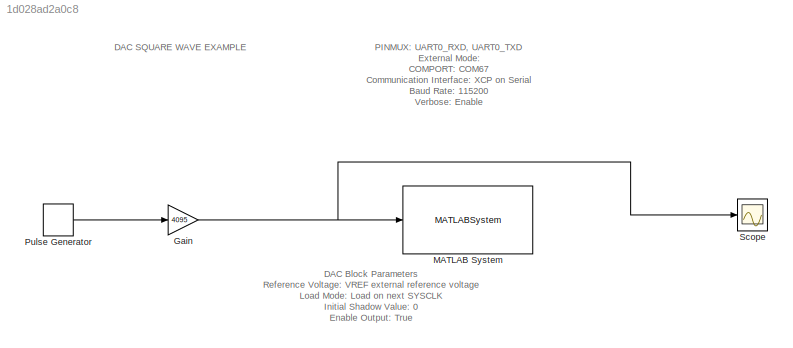
MODEL slx_1d028ad2a0c8
KIND model
CONFIG AbsTol = auto
CONFIG EnableMultiTasking = off
CONFIG FixedStep = auto
CONFIG MaxStep = auto
CONFIG MinStep = auto
CONFIG RelTol = 1e-3
CONFIG SampleTimeConstraint = Unconstrained
CONFIG SolverName = FixedStepAuto
CONFIG StartTime = 0.0
CONFIG StopTime = inf
BLOCK [Gain] Gain
  Gain = 4095
BLOCK [MATLABSystem] MATLAB System
  Control_Register = off
  EPWMSYNCPER_Signal = EPWM0SYNCPER
  Enable_Output = on
  Load_Mode = Load on next SYSCLK
  MaskDisplay = disp(['DAC' char(10) 'Type 1P2']);\nport_label('input',1,'DIN');
  MaskType = DAC
  Output_Register = off
  Reference_Voltage = VREF reference voltage (External)
  Shadow_Register = off
  Shadow_Value = 0
  System = DAC
BLOCK [DiscretePulseGenerator] Pulse Generator
  Period = 10
  PulseType = Time based
  PulseWidth = 60
BLOCK [Scope] Scope
  Floating = off
  NumInputPorts = 1
  ScopeSpecificationString = Simulink.scopes.TimeScopeBlockCfg('CurrentConfiguration', extmgr.ConfigurationSet(extmgr.Configuration('Core','General UI',true),extmgr.Configuration('Core','Source UI',true),extmgr.Configuration('Sources','WiredSimulink',true),extmgr.Configuration('Visuals','Time Domain',true,'SerializedDisplays',{struct('MinYLimReal','-6.25','MaxYLimReal','56.25','YLabelReal','','MinYLimMag','0.00000','MaxYLimMa...<+1436ch>
ANNOTATION (root): DAC Block Parameters Reference Voltage: VREF external reference voltage Load Mode: Load on next SYSCLK Initial Shadow Value: 0 Enable Output: True
ANNOTATION (root): DAC SQUARE WAVE EXAMPLE
ANNOTATION (root): PINMUX: UART0_RXD, UART0_TXD External Mode: COMPORT: COM67 Communication Interface: XCP on Serial Baud Rate: 115200 Verbose: Enable
NET Gain:1 -> MATLAB System:1, Scope:1
LINE Pulse Generator:1 -> Gain:1
note: NET lines group one-source signal fan-out (src -> all destinations, sorted); 1:1 wires keep LINE
